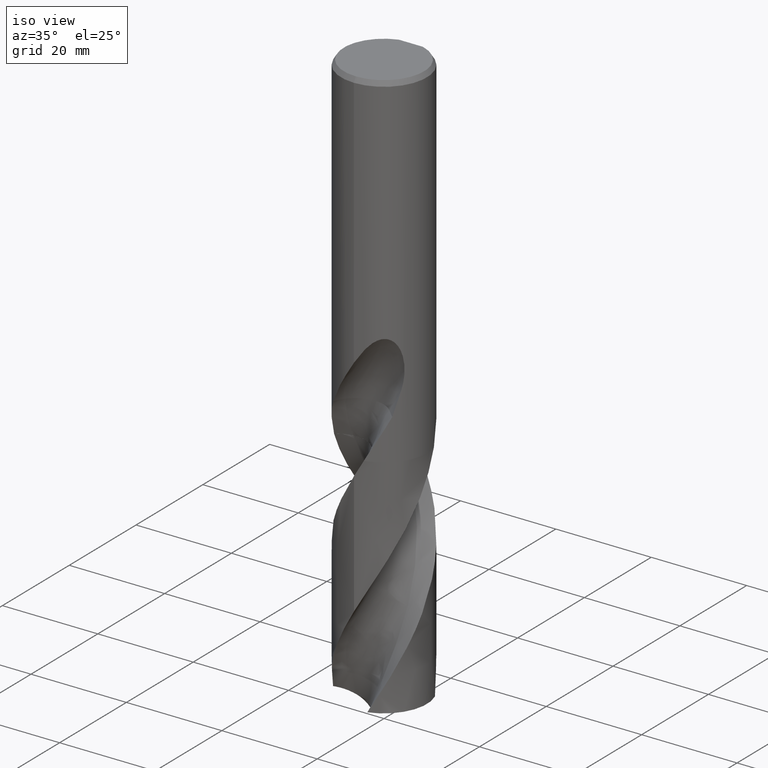
[diagram: clean part render]
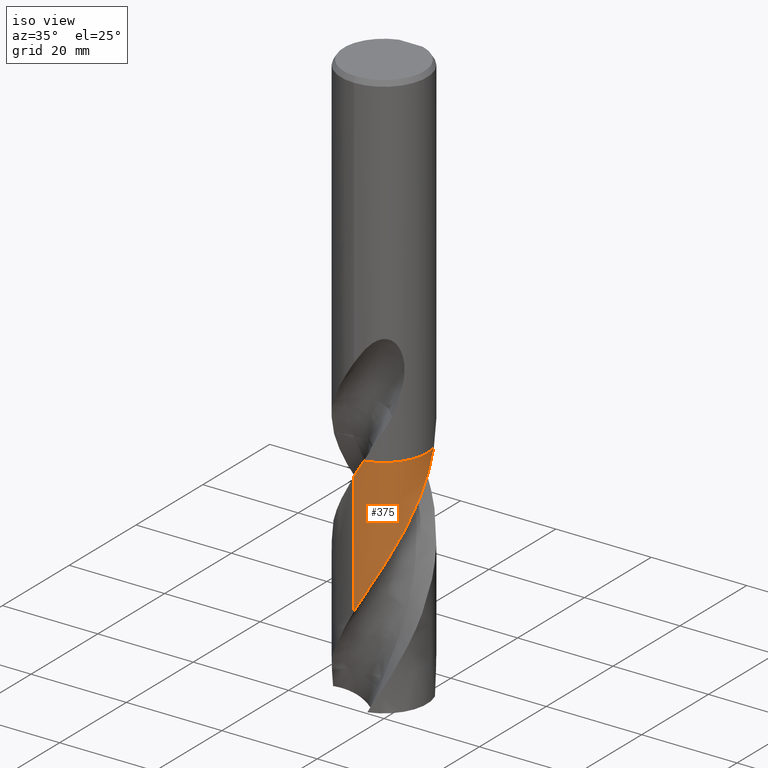
[diagram: same view with one face highlighted and labeled with its STEP entity id]
A machine part, iso view. The second image highlights one B-rep face of the part: STEP entity #375.
In plain terms, the highlighted conical surface has half-angle 0 deg.
Its self-contained STEP definition (entity closure, byte-faithful):
#289=EDGE_CURVE('',#291,#389,#805,.T.);
#291=VERTEX_POINT('',#807);
#317=EDGE_CURVE('',#501,#675,#834,.T.);
#339=EDGE_CURVE('',#675,#655,#858,.T.);
#375=ADVANCED_FACE('',(#898),#899,.T.);
#379=EDGE_CURVE('',#291,#655,#904,.T.);
#383=VERTEX_POINT('',#908);
#389=VERTEX_POINT('',#914);
#393=EDGE_CURVE('',#383,#501,#918,.T.);
#501=VERTEX_POINT('',#1036);
#589=EDGE_CURVE('',#389,#383,#1133,.T.);
#655=VERTEX_POINT('',#1204);
#675=VERTEX_POINT('',#1225);
#805=B_SPLINE_CURVE_WITH_KNOTS('',3,(#2019,#2020,#2021,#2022,#2023,#2024,#2025,#2026,#2027,#2028,#2029,#2030,#2031,#2032,#2033,#2034,#2035,#2036,#2037,#2038,#2039,#2040,#2041,#2042,#2043,#2044,#2045,#2046,#2047,#2048,#2049,#2050,#2051,#2052,#2053,#2054,#2055,#2056,#2057,#2058,#2059,#2060,#2061,#2062,#2063,#2064,#2065,#2066,#2067,#2068,#2069,#2070,#2071,#2072,#2073,#2074,#2075,#2076,#2077,#2078,#2079,#2080,#2081,#2082,#2083,#2084,#2085,#2086,#2087,#2088,#2089,#2090),.UNSPECIFIED.,.F.,.F.,(4,2,2,2,2,2,2,2,2,2,2,2,2,2,2,2,2,2,2,2,2,2,2,2,2,2,2,2,2,2,2,2,2,2,2,4),(0.0,2.46120071846087,3.75367134841027,5.70580455756761,8.4128677628861,9.7108549677934,11.8449497700153,12.8349788000469,14.0108964936914,15.9486127441613,16.9599675797028,18.425712224032,20.5501269784376,21.4798212214316,21.7280044524699,22.1978982069591,24.436824104041,25.4705259807295,27.4335426428511,29.0454265387098,30.1296419473623,31.1257730851685,33.2232830983601,34.2983659280278,35.5239897628309,39.0629457514061,39.3120724845902,41.4646792956819,42.5482934874706,44.1071113446873,46.584699019303,48.6958687011664,51.870743678559,53.4548479794054,53.8498373728911,55.0297111246245),.UNSPECIFIED.);
#807=CARTESIAN_POINT('',(-8.06499862064941E-012,-8.99996096237121,-101.171920615789));
#834=B_SPLINE_CURVE_WITH_KNOTS('',3,(#2180,#2181,#2182,#2183),.UNSPECIFIED.,.F.,.F.,(4,4),(0.0,0.014748588214771),.UNSPECIFIED.);
#858=B_SPLINE_CURVE_WITH_KNOTS('',3,(#2324,#2325,#2326,#2327,#2328,#2329,#2330,#2331,#2332,#2333,#2334,#2335,#2336,#2337,#2338,#2339,#2340,#2341,#2342,#2343,#2344,#2345,#2346,#2347,#2348,#2349,#2350,#2351,#2352,#2353,#2354,#2355,#2356,#2357,#2358,#2359,#2360,#2361,#2362,#2363,#2364,#2365,#2366,#2367),.UNSPECIFIED.,.F.,.F.,(4,2,2,2,2,2,2,2,2,2,2,2,2,2,2,2,2,2,2,2,2,4),(0.0,2.80913901906381,6.21159650901231,7.91848757148939,11.3272975155922,11.7524537492648,15.1560752420364,16.8850261402843,18.6175971094463,22.0869996754987,23.8219818646331,25.5498604167539,27.2826699308889,30.7511381660363,32.2655761883596,33.6831290589199,36.3417108849536,38.6703621398057,40.7089868595164,41.6010157420035,41.7050466072418,55.1295182863739),.UNSPECIFIED.);
#898=FACE_OUTER_BOUND('',#3317,.T.);
#899=CONICAL_SURFACE('',#3318,8.99995,2.10418812190236E-006);
#904=LINE('',#3325,#3326);
#908=CARTESIAN_POINT('',(8.59806693992164,2.65921885271343,-72.2));
#914=CARTESIAN_POINT('',(8.59892345946347,2.65644791736325,-72.205));
#918=CIRCLE('',#3362,8.9999);
#1036=CARTESIAN_POINT('',(1.92584652285564,-8.79143419360032,-72.2));
#1133=B_SPLINE_CURVE_WITH_KNOTS('',3,(#5950,#5951,#5952,#5953),.UNSPECIFIED.,.F.,.F.,(4,4),(0.0,0.0192457510211693),.UNSPECIFIED.);
#1204=CARTESIAN_POINT('',(6.44984515634189E-014,-8.99990702810709,-75.5400564063592));
#1225=CARTESIAN_POINT('',(1.92300408449176,-8.79205638576111,-72.2050000000001));
#2019=CARTESIAN_POINT('',(-8.38343318224909,-3.27384301376292,-119.724267891604));
#2020=CARTESIAN_POINT('',(-8.23364893311195,-3.65739616559346,-119.014684766536));
#2021=CARTESIAN_POINT('',(-8.05746153730941,-4.03086229137164,-118.307904385164));
#2022=CARTESIAN_POINT('',(-7.75010027532351,-4.58070900632027,-117.226612227755));
#2023=CARTESIAN_POINT('',(-7.63752532427044,-4.76602819295856,-116.854591115422));
#2024=CARTESIAN_POINT('',(-7.33860763668353,-5.2203204964982,-115.919550644402));
#2025=CARTESIAN_POINT('',(-7.14419611997688,-5.4833464138715,-115.355575929743));
#2026=CARTESIAN_POINT('',(-6.64717167389947,-6.08442700146489,-114.013038574653));
#2027=CARTESIAN_POINT('',(-6.33241847016599,-6.41136920470512,-113.236260128545));
#2028=CARTESIAN_POINT('',(-5.83223695338761,-6.85798442130579,-112.082399326332));
#2029=CARTESIAN_POINT('',(-5.66504175596161,-6.99672760967658,-111.707928586839));
#2030=CARTESIAN_POINT('',(-5.20998946721217,-7.34733008575752,-110.719212014198));
#2031=CARTESIAN_POINT('',(-4.91417091684051,-7.54840459292889,-110.106024624946));
#2032=CARTESIAN_POINT('',(-4.46450706435358,-7.81634784994125,-109.206392189542));
#2033=CARTESIAN_POINT('',(-4.31977133632013,-7.89725383952679,-108.921407314989));
#2034=CARTESIAN_POINT('',(-3.99860886438531,-8.06532222799697,-108.297451052453));
#2035=CARTESIAN_POINT('',(-3.82140494936169,-8.15077582804827,-107.95825345653));
#2036=CARTESIAN_POINT('',(-3.34488220307623,-8.36160533336228,-107.061268674268));
#2037=CARTESIAN_POINT('',(-3.04127748900893,-8.47676530194424,-106.504278223306));
#2038=CARTESIAN_POINT('',(-2.57044629821337,-8.62676014003013,-105.655097152177));
#2039=CARTESIAN_POINT('',(-2.4076329189277,-8.67360503848921,-105.364006465665));
#2040=CARTESIAN_POINT('',(-2.00604597253569,-8.77698220713876,-104.650507537037));
#2041=CARTESIAN_POINT('',(-1.76615619064581,-8.82837983366392,-104.22764471624));
#2042=CARTESIAN_POINT('',(-1.17394092231203,-8.93015491934249,-103.193569874978));
#2043=CARTESIAN_POINT('',(-0.820109036630844,-8.96958277010361,-102.583258205301));
#2044=CARTESIAN_POINT('',(-0.309184944016886,-8.99599778442007,-101.703884843407));
#2045=CARTESIAN_POINT('',(-0.15356283368742,-8.9999957638119,-101.436280284495));
#2046=CARTESIAN_POINT('',(0.0435202285944264,-8.9999513830418,-101.097000208923));
#2047=CARTESIAN_POINT('',(0.0850357787886784,-8.99965462944658,-101.025509418087));
#2048=CARTESIAN_POINT('',(0.2051148370778,-8.9979657382969,-100.818638202151));
#2049=CARTESIAN_POINT('',(0.283614415659842,-8.99583303273847,-100.683233089164));
#2050=CARTESIAN_POINT('',(0.736075059127171,-8.97761246094221,-99.9030390073461));
#2051=CARTESIAN_POINT('',(1.10907872233801,-8.93922696018626,-99.2600704673899));
#2052=CARTESIAN_POINT('',(1.6497324427401,-8.8491550313988,-98.318163486068));
#2053=CARTESIAN_POINT('',(1.81957610841682,-8.81579504892765,-98.0207907393353));
#2054=CARTESIAN_POINT('',(2.30865295018078,-8.70500844045144,-97.1580476071339));
#2055=CARTESIAN_POINT('',(2.62477126910287,-8.61496894938566,-96.5918092880067));
#2056=CARTESIAN_POINT('',(3.19050017972046,-8.41977468444196,-95.5625645415518));
#2057=CARTESIAN_POINT('',(3.4415487354455,-8.32031775871642,-95.0991841227569));
#2058=CARTESIAN_POINT('',(3.85344406497319,-8.13529224296698,-94.3230915283297));
#2059=CARTESIAN_POINT('',(4.01668776587678,-8.05593775776802,-94.0111384265868));
#2060=CARTESIAN_POINT('',(4.32490031457561,-7.89442852065533,-93.4120330516141));
#2061=CARTESIAN_POINT('',(4.47022544455067,-7.81305615430092,-93.1248574091064));
#2062=CARTESIAN_POINT('',(4.91459372550595,-7.54777127504802,-92.2338595833767));
#2063=CARTESIAN_POINT('',(5.20528560084639,-7.3503317913174,-91.631301994772));
#2064=CARTESIAN_POINT('',(5.62665887638133,-7.02652403677167,-90.7180181259608));
#2065=CARTESIAN_POINT('',(5.76604161693709,-6.91259783864131,-90.4086865431337));
#2066=CARTESIAN_POINT('',(6.05665570113703,-6.66016794453106,-89.7461364032663));
#2067=CARTESIAN_POINT('',(6.20674397416372,-6.52052371816331,-89.3927058881306));
#2068=CARTESIAN_POINT('',(6.77147206118569,-5.9578981252784,-88.0205955592244));
#2069=CARTESIAN_POINT('',(7.14848779315345,-5.49979757553021,-87.008329936962));
#2070=CARTESIAN_POINT('',(7.5008277111273,-4.97373472275959,-85.9172713034665));
#2071=CARTESIAN_POINT('',(7.52374347164734,-4.93900143613088,-85.8455299182693));
#2072=CARTESIAN_POINT('',(7.74250343917913,-4.60236951846563,-85.1537091637259));
#2073=CARTESIAN_POINT('',(7.9204905686691,-4.2888799188339,-84.5353305277267));
#2074=CARTESIAN_POINT('',(8.15930489920457,-3.80227788759674,-83.6038365598666));
#2075=CARTESIAN_POINT('',(8.23429314674293,-3.63702209846341,-83.2921062679838));
#2076=CARTESIAN_POINT('',(8.4047949559138,-3.22894438850666,-82.5313384294741));
#2077=CARTESIAN_POINT('',(8.49479319146596,-2.98412551874542,-82.081772235119));
#2078=CARTESIAN_POINT('',(8.69996156780653,-2.34111819556236,-80.9198958779334));
#2079=CARTESIAN_POINT('',(8.79855047083677,-1.93803528278962,-80.2092612966078));
#2080=CARTESIAN_POINT('',(8.92906427846926,-1.18115532847104,-78.8889516076715));
#2081=CARTESIAN_POINT('',(8.96851460697021,-0.829933883194213,-78.2804964114274));
#2082=CARTESIAN_POINT('',(9.0153989023835,0.0526980029978035,-76.7595159373113));
#2083=CARTESIAN_POINT('',(8.99660655672527,0.584367929513752,-75.8499191778809));
#2084=CARTESIAN_POINT('',(8.89829132715463,1.37438034393634,-74.4812902069801));
#2085=CARTESIAN_POINT('',(8.85401433204518,1.63536868604495,-74.0262716125904));
#2086=CARTESIAN_POINT('',(8.7846019230815,1.95789480644839,-73.4564430344592));
#2087=CARTESIAN_POINT('',(8.77005422105752,2.02205664261513,-73.3427003847944));
#2088=CARTESIAN_POINT('',(8.70930742973455,2.27700327133632,-72.8890033534717));
#2089=CARTESIAN_POINT('',(8.65737894965582,2.46724878350796,-72.5463931103791));
#2090=CARTESIAN_POINT('',(8.59884871352989,2.65668985481289,-72.2045634461132));
#2180=CARTESIAN_POINT('',(1.9258465228556,-8.79143419360033,-72.2000000000001));
#2181=CARTESIAN_POINT('',(1.92343105816758,-8.79196333305979,-72.2042490617303));
#2182=CARTESIAN_POINT('',(1.92101539652417,-8.7924914724115,-72.2084981353989));
#2183=CARTESIAN_POINT('',(1.91859953857647,-8.79301861156763,-72.212747222117));
#2324=CARTESIAN_POINT('',(1.92471496501865,-8.79168199998292,-72.201990507266));
#2325=CARTESIAN_POINT('',(1.46463370465705,-8.89240682297865,-73.0113029536945));
#2326=CARTESIAN_POINT('',(0.997665255392101,-8.95679776636958,-73.8215925862292));
#2327=CARTESIAN_POINT('',(-0.0407535597782343,-9.01783361961754,-75.6114850507196));
#2328=CARTESIAN_POINT('',(-0.611596483788247,-8.9971828625971,-76.5892095111028));
#2329=CARTESIAN_POINT('',(-1.4603060047718,-8.88525272485714,-78.0614381548823));
#2330=CARTESIAN_POINT('',(-1.74182926057869,-8.83437547036796,-78.552949461787));
#2331=CARTESIAN_POINT('',(-2.57672289414742,-8.64204362975587,-80.0272455067708));
#2332=CARTESIAN_POINT('',(-3.11974149429091,-8.46120546668445,-81.007630165002));
#2333=CARTESIAN_POINT('',(-3.70721293684259,-8.20123300322106,-82.1123733975118));
#2334=CARTESIAN_POINT('',(-3.77200873866465,-8.17163413013966,-82.2348592732433));
#2335=CARTESIAN_POINT('',(-4.35230476860735,-7.8981812462406,-83.3381964020798));
#2336=CARTESIAN_POINT('',(-4.84392863703793,-7.6065930474609,-84.3176133047575));
#2337=CARTESIAN_POINT('',(-5.53866779894225,-7.09970414918581,-85.7967264417726));
#2338=CARTESIAN_POINT('',(-5.76427726282842,-6.91778249218062,-86.2945928430518));
#2339=CARTESIAN_POINT('',(-6.19756033256337,-6.53247596836189,-87.2922648891261));
#2340=CARTESIAN_POINT('',(-6.40499491778091,-6.32922494269988,-87.7914083533918));
#2341=CARTESIAN_POINT('',(-6.99728177043604,-5.68988184355453,-89.2906206843235));
#2342=CARTESIAN_POINT('',(-7.35004009160391,-5.22623725074774,-90.2878977703165));
#2343=CARTESIAN_POINT('',(-7.80840913642193,-4.48465784870975,-91.7878738101091));
#2344=CARTESIAN_POINT('',(-7.94917437802314,-4.23014281502296,-92.2875949778586));
#2345=CARTESIAN_POINT('',(-8.20508607213801,-3.70936533311599,-93.2855318010702));
#2346=CARTESIAN_POINT('',(-8.32014348430504,-3.44354532578919,-93.7831218317499));
#2347=CARTESIAN_POINT('',(-8.52450397316129,-2.90105853581972,-94.7805644351545));
#2348=CARTESIAN_POINT('',(-8.61363975295521,-2.62460899148382,-95.279772424013));
#2349=CARTESIAN_POINT('',(-8.84063794794309,-1.78324372144373,-96.7787945572051));
#2350=CARTESIAN_POINT('',(-8.93730262468165,-1.20887621888475,-97.775889188665));
#2351=CARTESIAN_POINT('',(-8.99566880321536,-0.376199777845696,-99.2120559664572));
#2352=CARTESIAN_POINT('',(-9.00270189046247,-0.122454864002608,-99.648328844086));
#2353=CARTESIAN_POINT('',(-8.99553706153313,0.368789318437826,-100.493301851269));
#2354=CARTESIAN_POINT('',(-8.98267264899772,0.606031787103221,-100.901530055959));
#2355=CARTESIAN_POINT('',(-8.91875421812448,1.28589258034159,-102.076361046711));
#2356=CARTESIAN_POINT('',(-8.84420048738279,1.72566905806016,-102.841866790324));
#2357=CARTESIAN_POINT('',(-8.64381028586434,2.53696941527911,-104.279220321416));
#2358=CARTESIAN_POINT('',(-8.52572019561029,2.9092448516271,-104.949484960017));
#2359=CARTESIAN_POINT('',(-8.25969498879074,3.59075933961576,-106.208295349849));
#2360=CARTESIAN_POINT('',(-8.11748874381346,3.90161365640745,-106.795462274573));
#2361=CARTESIAN_POINT('',(-7.88811054744477,4.33585036552456,-107.640094660834));
#2362=CARTESIAN_POINT('',(-7.81501511443046,4.46625450009827,-107.897098440112));
#2363=CARTESIAN_POINT('',(-7.72981251777437,4.60975760475994,-108.184100609293));
#2364=CARTESIAN_POINT('',(-7.720870380965,4.62471927909442,-108.214076645854));
#2365=CARTESIAN_POINT('',(-6.55238078481429,6.56696108127285,-112.112366582698));
#2366=CARTESIAN_POINT('',(-4.71117747881449,7.99169141141152,-115.856500080639));
#2367=CARTESIAN_POINT('',(-2.55365792178279,8.63011188910763,-119.724267891604));
#3317=EDGE_LOOP('',(#8406,#8407,#8408,#8409,#8410,#8411));
#3318=AXIS2_PLACEMENT_3D('',#8412,#8413,#8414);
#3325=CARTESIAN_POINT('',(1.09921595238522E-015,-8.99995,-95.9621339458021));
#3326=VECTOR('',#8423,1.0);
#3362=AXIS2_PLACEMENT_3D('',#8427,#8428,#8429);
#5950=CARTESIAN_POINT('',(8.60091516516349,2.64999225700828,-72.2166480175587));
#5951=CARTESIAN_POINT('',(8.59996747147627,2.65306808784959,-72.2110985510762));
#5952=CARTESIAN_POINT('',(8.5990180631798,2.65614362017093,-72.2055492114273));
#5953=CARTESIAN_POINT('',(8.59806693992166,2.65921885271342,-72.2));
#8406=ORIENTED_EDGE('',*,*,#379,.F.);
#8407=ORIENTED_EDGE('',*,*,#289,.T.);
#8408=ORIENTED_EDGE('',*,*,#589,.T.);
#8409=ORIENTED_EDGE('',*,*,#393,.T.);
#8410=ORIENTED_EDGE('',*,*,#317,.T.);
#8411=ORIENTED_EDGE('',*,*,#339,.T.);
#8412=CARTESIAN_POINT('',(0.0,0.0,-95.9621339458021));
#8413=DIRECTION('',(0.0,-0.0,-1.0));
#8414=DIRECTION('',(0.0,1.0,0.0));
#8423=DIRECTION('',(-2.57680214371731E-022,2.10418812190081E-006,0.999999999997786));
#8427=CARTESIAN_POINT('',(0.0,0.0,-72.2));
#8428=DIRECTION('',(0.0,0.0,-1.0));
#8429=DIRECTION('',(0.0,1.0,0.0));